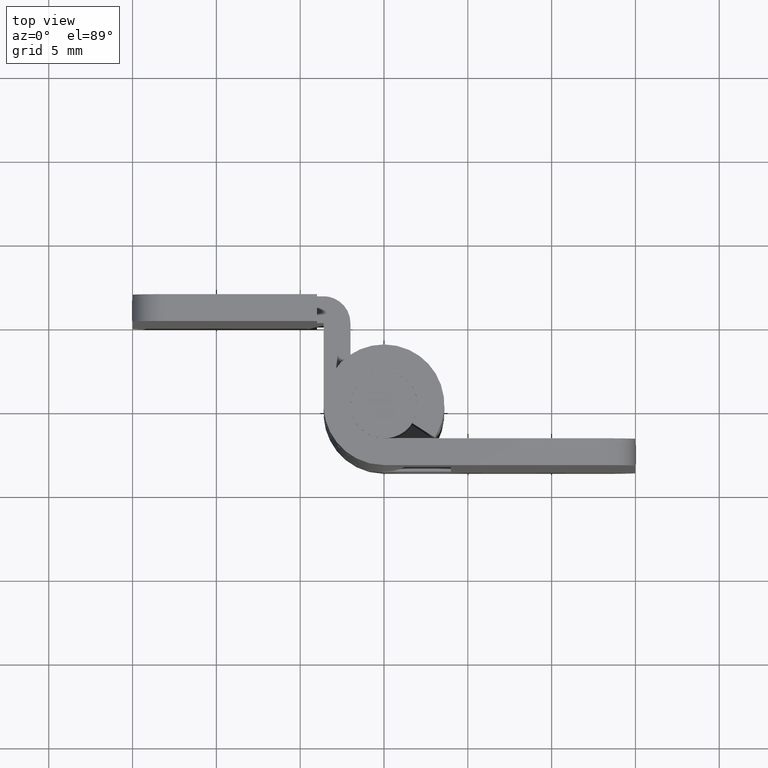
[diagram: clean part render]
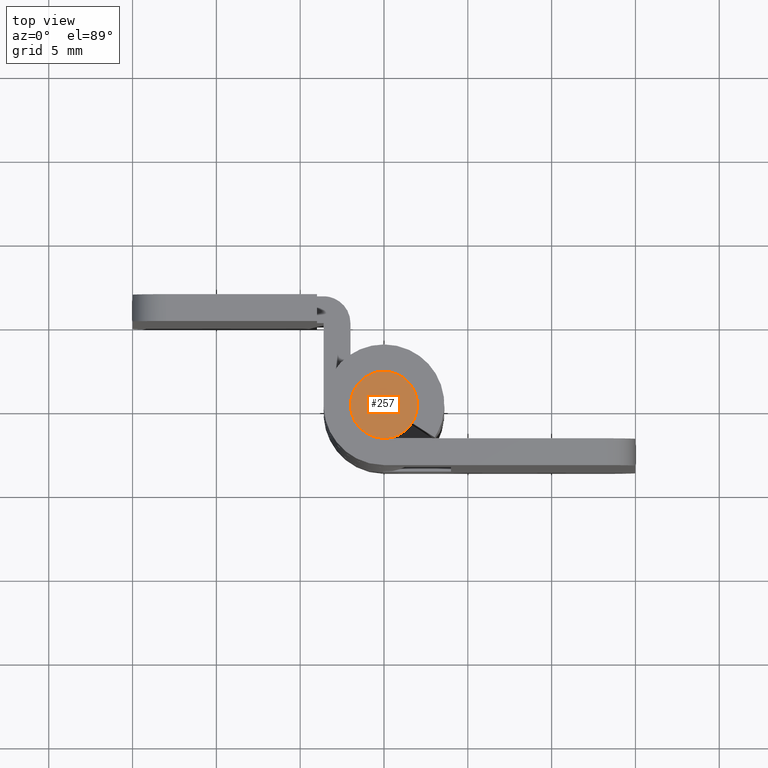
[diagram: same view with one face highlighted and labeled with its STEP entity id]
A machine part, top view. The second image highlights one B-rep face of the part: STEP entity #257.
In plain terms, the highlighted face is a freeform B-spline surface patch.
Its self-contained STEP definition (entity closure, byte-faithful):
#89=CARTESIAN_POINT('',(0.236068469328979,-1.986019052725495,30.0));
#90=VERTEX_POINT('',#89);
#96=CARTESIAN_POINT('',(-2.0,0.0,30.0));
#97=VERTEX_POINT('',#96);
#98=CARTESIAN_POINT('',(0.236068469328979,-1.986019052725495,30.000000000000004));
#99=CARTESIAN_POINT('',(0.118448239319446,-2.000000000000000,30.0));
#100=CARTESIAN_POINT('',(0.0,-2.0,30.0));
#101=CARTESIAN_POINT('',(-2.000000000000000,-2.000000000000000,30.000000000000004));
#102=CARTESIAN_POINT('',(-2.0,0.0,30.0));
#110=(BOUNDED_CURVE()B_SPLINE_CURVE(2,(#98,#99,#100,#101,#102),.UNSPECIFIED.,.F.,.U.)B_SPLINE_CURVE_WITH_KNOTS((3,2,3),(0.229562473513013,0.250000000000000,0.500000000000000),.UNSPECIFIED.)CURVE()GEOMETRIC_REPRESENTATION_ITEM()RATIONAL_B_SPLINE_CURVE((0.956026754182728,0.976055948330564,1.0,0.707106781186548,1.0))REPRESENTATION_ITEM(''));
#111=EDGE_CURVE('',#90,#97,#110,.T.);
#113=CARTESIAN_POINT('',(-0.122093436056999,1.996269819653264,30.0));
#114=VERTEX_POINT('',#113);
#115=CARTESIAN_POINT('',(-2.0,0.0,30.0));
#116=CARTESIAN_POINT('',(-1.999999999999999,1.881415573638085,30.0));
#117=CARTESIAN_POINT('',(-0.122093436056999,1.996269819653264,29.999999999999996));
#125=(BOUNDED_CURVE()B_SPLINE_CURVE(2,(#115,#116,#117),.UNSPECIFIED.,.F.,.U.)B_SPLINE_CURVE_WITH_KNOTS((3,3),(0.500000000000000,0.739333277124436),.UNSPECIFIED.)CURVE()GEOMETRIC_REPRESENTATION_ITEM()RATIONAL_B_SPLINE_CURVE((1.0,0.719603624375408,0.976072716527199))REPRESENTATION_ITEM(''));
#126=EDGE_CURVE('',#97,#114,#125,.T.);
#200=CARTESIAN_POINT('',(2.0,0.0,30.0));
#201=VERTEX_POINT('',#200);
#202=CARTESIAN_POINT('',(-0.122093436056999,1.996269819653264,29.999999999999996));
#203=CARTESIAN_POINT('',(-0.061103699983748,2.000000000000000,30.000000000000004));
#204=CARTESIAN_POINT('',(0.0,2.0,30.0));
#205=CARTESIAN_POINT('',(2.000000000000000,2.000000000000000,30.000000000000004));
#206=CARTESIAN_POINT('',(2.0,0.0,30.0));
#214=(BOUNDED_CURVE()B_SPLINE_CURVE(2,(#202,#203,#204,#205,#206),.UNSPECIFIED.,.F.,.U.)B_SPLINE_CURVE_WITH_KNOTS((3,2,3),(0.739333277124436,0.750000000000000,1.0),.UNSPECIFIED.)CURVE()GEOMETRIC_REPRESENTATION_ITEM()RATIONAL_B_SPLINE_CURVE((0.976072716527199,0.987503156811140,1.0,0.707106781186548,1.0))REPRESENTATION_ITEM(''));
#215=EDGE_CURVE('',#114,#201,#214,.T.);
#217=CARTESIAN_POINT('',(2.0,0.0,30.0));
#218=CARTESIAN_POINT('',(2.000000000000000,-1.776349051874881,30.0));
#219=CARTESIAN_POINT('',(0.236068469328979,-1.986019052725495,30.000000000000004));
#227=(BOUNDED_CURVE()B_SPLINE_CURVE(2,(#217,#218,#219),.UNSPECIFIED.,.F.,.U.)B_SPLINE_CURVE_WITH_KNOTS((3,3),(0.0,0.229562473513013),.UNSPECIFIED.)CURVE()GEOMETRIC_REPRESENTATION_ITEM()RATIONAL_B_SPLINE_CURVE((1.0,0.731050832855983,0.956026754182728))REPRESENTATION_ITEM(''));
#228=EDGE_CURVE('',#201,#90,#227,.T.);
#246=CARTESIAN_POINT('',(-2.199799992247224,-2.199763729070981,30.0));
#247=CARTESIAN_POINT('',(2.199800099535584,-2.199763729070981,30.0));
#248=CARTESIAN_POINT('',(-2.199799992247224,2.199751319383939,30.0));
#249=CARTESIAN_POINT('',(2.199800099535584,2.199751319383939,30.0));
#250=B_SPLINE_SURFACE_WITH_KNOTS('',1,1,((#246,#248),(#247,#249)),.UNSPECIFIED.,.F.,.F.,.U.,(2,2),(2,2),(0.0,4.399600091782808),(0.0,4.399515048454920),.UNSPECIFIED.);
#251=ORIENTED_EDGE('',*,*,#215,.F.);
#252=ORIENTED_EDGE('',*,*,#126,.F.);
#253=ORIENTED_EDGE('',*,*,#111,.F.);
#254=ORIENTED_EDGE('',*,*,#228,.F.);
#255=EDGE_LOOP('',(#251,#252,#253,#254));
#256=FACE_OUTER_BOUND('',#255,.T.);
#257=ADVANCED_FACE('',(#256),#250,.T.);